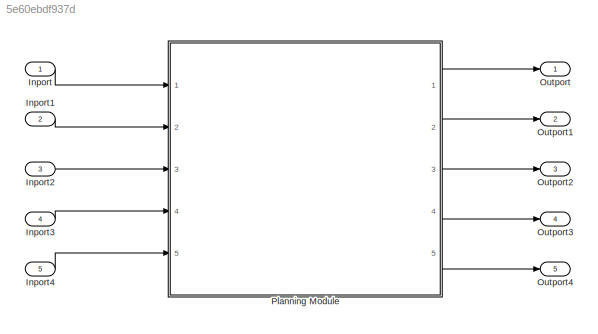
MODEL slx_5e60ebdf937d
KIND model
CONFIG AbsTol = auto
CONFIG EnableMultiTasking = on
CONFIG FixedStep = auto
CONFIG MaxStep = auto
CONFIG MinStep = auto
CONFIG RelTol = 1e-3
CONFIG SampleTimeConstraint = Unconstrained
CONFIG Solver = FixedStepAuto
CONFIG SolverName = FixedStepAuto
CONFIG StartTime = 0.0
CONFIG StopTime = 10.0
BLOCK [Inport] Inport
  IconDisplay = Port number
BLOCK [Inport] Inport1
  IconDisplay = Port number
  Port = 2
BLOCK [Inport] Inport2
  IconDisplay = Port number
  Port = 3
BLOCK [Inport] Inport3
  IconDisplay = Port number
  Port = 4
BLOCK [Inport] Inport4
  IconDisplay = Port number
  Port = 5
BLOCK [Outport] Outport
  IconDisplay = Port number
BLOCK [Outport] Outport1
  IconDisplay = Port number
  Port = 2
BLOCK [Outport] Outport2
  IconDisplay = Port number
  Port = 3
BLOCK [Outport] Outport3
  IconDisplay = Port number
  Port = 4
BLOCK [Outport] Outport4
  IconDisplay = Port number
  Port = 5
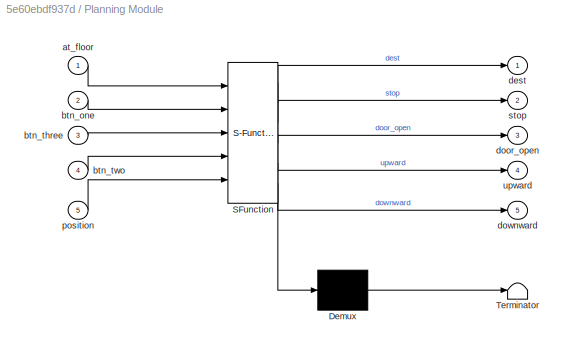
BLOCK [SubSystem] Planning Module 
  ErrorFcn = Stateflow.Translate.translate
  PermitHierarchicalResolution = ExplicitOnly
  Ports = [5, 5]
  RequestExecContextInheritance = off
  SFBlockType = Chart
  TreatAsAtomicUnit = on
BLOCK [Demux] Planning Module / Demux 
  Outputs = 1
  Ports = [1, 1]
BLOCK [S-Function] Planning Module / SFunction 
  EnableBusSupport = on
  FunctionName = sf_sfun
  PortCounts = [5 6]
  Ports = [5, 6]
  SFcnIsStateOwnerBlock = off
  SFunctionDeploymentMode = off
  Tag = Stateflow S-Function planning 3
BLOCK [Terminator] Planning Module / Terminator 
BLOCK [Inport] Planning Module /at_floor
  IconDisplay = Port number
BLOCK [Inport] Planning Module /btn_one
  IconDisplay = Port number
  Port = 2
BLOCK [Inport] Planning Module /btn_three
  IconDisplay = Port number
  Port = 3
BLOCK [Inport] Planning Module /btn_two
  IconDisplay = Port number
  Port = 4
BLOCK [Outport] Planning Module /dest
  IconDisplay = Port number
BLOCK [Outport] Planning Module /door_open
  IconDisplay = Port number
  Port = 3
BLOCK [Outport] Planning Module /downward
  IconDisplay = Port number
  Port = 5
BLOCK [Inport] Planning Module /position
  IconDisplay = Port number
  Port = 5
BLOCK [Outport] Planning Module /stop
  IconDisplay = Port number
  Port = 2
BLOCK [Outport] Planning Module /upward
  IconDisplay = Port number
  Port = 4
LINE Inport1:1 -> Planning Module :2
LINE Inport2:1 -> Planning Module :3
LINE Inport3:1 -> Planning Module :4
LINE Inport4:1 -> Planning Module :5
LINE Inport:1 -> Planning Module :1
LINE Planning Module :1 -> Outport:1
LINE Planning Module :2 -> Outport1:1
LINE Planning Module :3 -> Outport2:1
LINE Planning Module :4 -> Outport3:1
LINE Planning Module :5 -> Outport4:1
CHART Planning Module
 states=10 transitions=22
  STATE_LABEL 'planning_cal'
  STATE_LABEL 'plan_handle'
  STATE_LABEL 'floor1\nentry:\none_pressed = 0;\ndoor_open = 1;\nstop = 1;'
  STATE_LABEL 'floor3\nentry:\nthree_pressed = 0;\ndoor_open = 1;\nstop = 1;'
  STATE_LABEL 'move_up\nentry:\ndoor_open = 0;\nstop = 0;\nupward = 1;\ndownward = 0;'
  STATE_LABEL 'move_down\nentry:\ndoor_open = 0;\nstop = 0;\nupward = 0;\ndownward = 1;'
  STATE_LABEL 'floor2\nentry:\ntwo_pressed = 0;\ndoor_open = 1;\nstop = 1;'
  STATE_LABEL '[one_pressed == 1]'
  STATE_LABEL '[after(5, sec) && two_pressed == 1]{dest = 2; two_open = 1}'
  STATE_LABEL '[one_pressed == 1 && at_floor == 1]'
  STATE_LABEL '[after(5, sec) && two_pressed == 0 && three_pressed == 1]{dest = 3; two_open = 0}'
  STATE_LABEL '[three_pressed == 1]'
  STATE_LABEL '[two_pressed == 1 && two_open == 0 && position <= 200]{two_open = 1; dest = 2}'
  STATE_LABEL '[three_pressed == 1 && at_floor == 3]'
  STATE_LABEL '[after(5, sec) && two_pressed == 0 && one_pressed == 1]{dest = 1; two_open = 0}'
  STATE_LABEL '[after(5, sec) && two_pressed == 1]{dest = 2; two_open = 1}'
  STATE_LABEL '[after(5, sec) && three_pressed == 1]{dest = 3}'
  STATE_LABEL '[at_floor == 2 && two_pressed == 1 && two_open == 1]'
  STATE_LABEL '[two_pressed == 1]'
  STATE_LABEL '[at_floor == 2 && two_pressed == 1 && two_open == 1]'
  STATE_LABEL '[two_pressed == 1 && two_open == 0 && position >= 600]{two_open = 1; dest = 2}'
  STATE_LABEL '[after(5, sec) && one_pressed == 1]{dest = 1}'
  STATE_LABEL 'btn_handle'
  STATE_LABEL 'btn_handle'
  STATE_LABEL '[btn_two == 1]{two_pressed = 1}'
  STATE_LABEL '[btn_one == 1]{one_pressed = 1}'
  STATE_LABEL '[btn_three == 1]{three_pressed = 1}'
  STATE_LABEL 'plan_handle'
  STATE_LABEL 'floor1\nentry:\none_pressed = 0;\ndoor_open = 1;\nstop = 1;'
  STATE_LABEL 'floor3\nentry:\nthree_pressed = 0;\ndoor_open = 1;\nstop = 1;'
  STATE_LABEL 'move_up\nentry:\ndoor_open = 0;\nstop = 0;\nupward = 1;\ndownward = 0;'
  STATE_LABEL 'move_down\nentry:\ndoor_open = 0;\nstop = 0;\nupward = 0;\ndownward = 1;'
  STATE_LABEL 'floor2\nentry:\ntwo_pressed = 0;\ndoor_open = 1;\nstop = 1;'
  STATE_LABEL '[one_pressed == 1]'
  STATE_LABEL '[after(5, sec) && two_pressed == 1]{dest = 2; two_open = 1}'
  STATE_LABEL '[one_pressed == 1 && at_floor == 1]'
  STATE_LABEL '[after(5, sec) && two_pressed == 0 && three_pressed == 1]{dest = 3; two_open = 0}'
  STATE_LABEL '[three_pressed == 1]'
  STATE_LABEL '[two_pressed == 1 && two_open == 0 && position <= 200]{two_open = 1; dest = 2}'
  STATE_LABEL '[three_pressed == 1 && at_floor == 3]'
